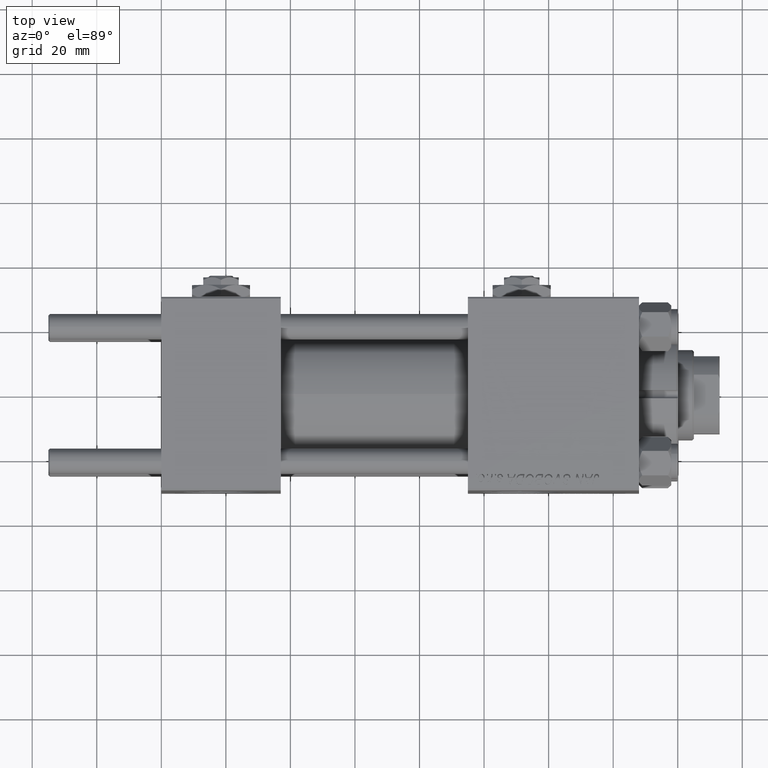
[diagram: clean part render]
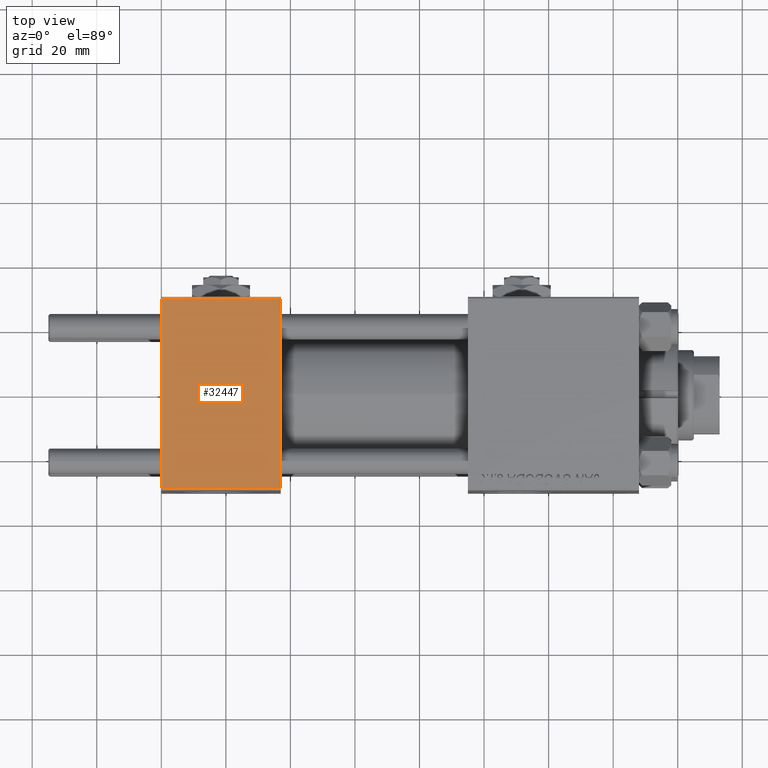
[diagram: same view with one face highlighted and labeled with its STEP entity id]
A machine part, top view. The second image highlights one B-rep face of the part: STEP entity #32447.
In plain terms, the highlighted planar face has unit normal (0, 0, -1).
Its self-contained STEP definition (entity closure, byte-faithful):
#523 = VERTEX_POINT ( 'NONE', #8049 ) ;
#620 = EDGE_CURVE ( 'NONE', #6144, #40291, #8583, .T. ) ;
#4163 = CARTESIAN_POINT ( 'NONE',  ( 37.00000000000000000, -29.49999999999998579, 29.99999999999999289 ) ) ;
#5438 = EDGE_CURVE ( 'NONE', #40291, #46615, #16287, .T. ) ;
#5849 = ORIENTED_EDGE ( 'NONE', *, *, #620, .T. ) ;
#6144 = VERTEX_POINT ( 'NONE', #7308 ) ;
#6760 = DIRECTION ( 'NONE',  ( 0.000000000000000000, -1.000000000000000000, -1.156482317317871725E-16 ) ) ;
#7308 = CARTESIAN_POINT ( 'NONE',  ( 0.000000000000000000, 29.49999999999999289, 30.00000000000000000 ) ) ;
#8049 = CARTESIAN_POINT ( 'NONE',  ( 37.00000000000000000, 29.49999999999999289, 30.00000000000000000 ) ) ;
#8583 = LINE ( 'NONE', #48922, #39306 ) ;
#9272 = CARTESIAN_POINT ( 'NONE',  ( 37.00000000000000000, 29.99999999999999289, 30.00000000000000000 ) ) ;
#11011 = CARTESIAN_POINT ( 'NONE',  ( 0.000000000000000000, -29.49999999999998579, 29.99999999999999289 ) ) ;
#12342 = DIRECTION ( 'NONE',  ( 1.000000000000000000, 0.000000000000000000, 0.000000000000000000 ) ) ;
#12603 = CARTESIAN_POINT ( 'NONE',  ( 37.00000000000000000, -29.50000000000000000, 29.99999999999999289 ) ) ;
#13227 = FACE_OUTER_BOUND ( 'NONE', #19080, .T. ) ;
#13606 = ORIENTED_EDGE ( 'NONE', *, *, #36637, .T. ) ;
#16287 = LINE ( 'NONE', #12603, #32711 ) ;
#18097 = LINE ( 'NONE', #42876, #20057 ) ;
#19080 = EDGE_LOOP ( 'NONE', ( #5849, #26652, #36805, #13606 ) ) ;
#20057 = VECTOR ( 'NONE', #6760, 1000.000000000000000 ) ;
#21906 = VECTOR ( 'NONE', #29882, 1000.000000000000000 ) ;
#26652 = ORIENTED_EDGE ( 'NONE', *, *, #5438, .T. ) ;
#27878 = EDGE_CURVE ( 'NONE', #523, #46615, #18097, .T. ) ;
#29882 = DIRECTION ( 'NONE',  ( -1.000000000000000000, 0.000000000000000000, 0.000000000000000000 ) ) ;
#32447 = ADVANCED_FACE ( 'NONE', ( #13227 ), #45400, .F. ) ;
#32711 = VECTOR ( 'NONE', #12342, 1000.000000000000000 ) ;
#32814 = AXIS2_PLACEMENT_3D ( 'NONE', #9272, #46958, #51434 ) ;
#36637 = EDGE_CURVE ( 'NONE', #523, #6144, #42790, .T. ) ;
#36805 = ORIENTED_EDGE ( 'NONE', *, *, #27878, .F. ) ;
#39306 = VECTOR ( 'NONE', #49177, 1000.000000000000000 ) ;
#40291 = VERTEX_POINT ( 'NONE', #11011 ) ;
#42790 = LINE ( 'NONE', #43757, #21906 ) ;
#42876 = CARTESIAN_POINT ( 'NONE',  ( 37.00000000000000000, 29.99999999999999289, 30.00000000000000000 ) ) ;
#43757 = CARTESIAN_POINT ( 'NONE',  ( 0.000000000000000000, 29.49999999999999289, 30.00000000000000000 ) ) ;
#45400 = PLANE ( 'NONE',  #32814 ) ;
#46615 = VERTEX_POINT ( 'NONE', #4163 ) ;
#46958 = DIRECTION ( 'NONE',  ( 0.000000000000000000, 1.156482317317871725E-16, -1.000000000000000000 ) ) ;
#48922 = CARTESIAN_POINT ( 'NONE',  ( 0.000000000000000000, 29.99999999999999289, 30.00000000000000000 ) ) ;
#49177 = DIRECTION ( 'NONE',  ( 0.000000000000000000, -1.000000000000000000, -1.156482317317871725E-16 ) ) ;
#51434 = DIRECTION ( 'NONE',  ( 0.000000000000000000, 1.000000000000000000, 1.156482317317871725E-16 ) ) ;